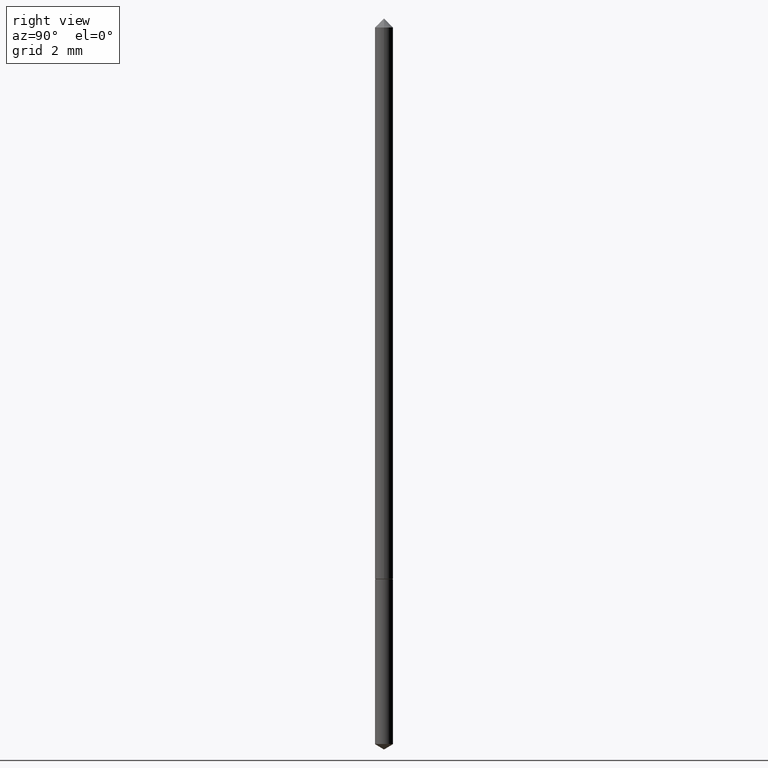
[diagram: clean part render]
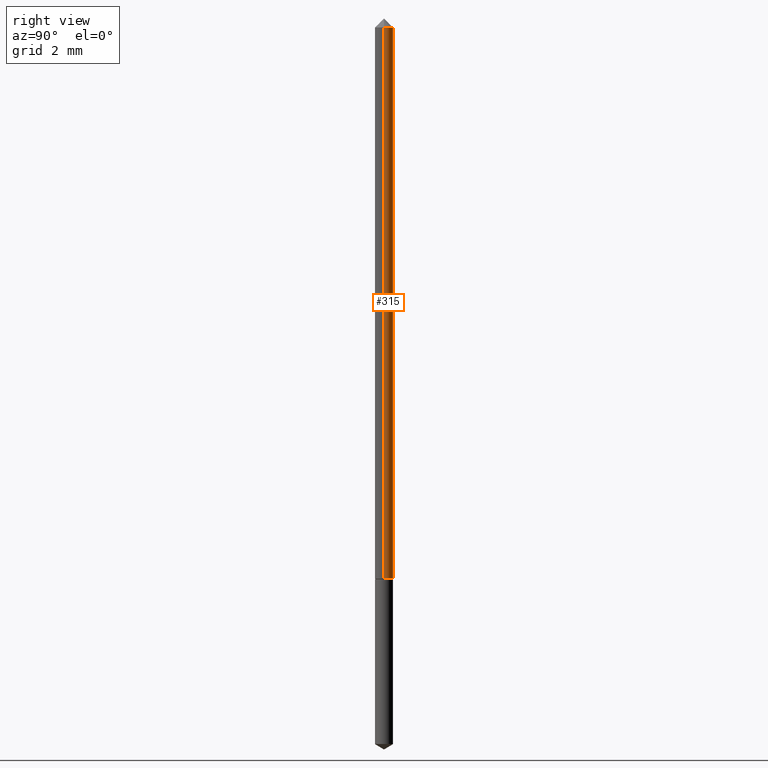
[diagram: same view with one face highlighted and labeled with its STEP entity id]
A machine part, right view. The second image highlights one B-rep face of the part: STEP entity #315.
In plain terms, the highlighted cylindrical surface (edge-blend (fillet) strip) has radius 0.2286 mm, axis along (-0, 0, 1).
Its self-contained STEP definition (entity closure, byte-faithful):
#10 = DIRECTION ( 'NONE',  ( -2.445468806185136877E-29, 3.491481338843145188E-15, 1.000000000000000000 ) ) ;
#12 = DIRECTION ( 'NONE',  ( -2.445468806185136597E-29, 3.491481338843145583E-15, 1.000000000000000000 ) ) ;
#13 = CARTESIAN_POINT ( 'NONE',  ( -0.009000000000000002789, -1.003135137965526004E-15, -0.03125000000000020123 ) ) ;
#17 = EDGE_LOOP ( 'NONE', ( #359, #281, #80, #115 ) ) ;
#20 = CYLINDRICAL_SURFACE ( 'NONE', #276, 0.009000000000000037484 ) ;
#35 = VERTEX_POINT ( 'NONE', #258 ) ;
#40 = VECTOR ( 'NONE', #10, 39.37007874015748143 ) ;
#43 = LINE ( 'NONE', #151, #40 ) ;
#45 = DIRECTION ( 'NONE',  ( 1.000000000000000000, -6.982962677686267499E-15, 4.876176775795935793E-29 ) ) ;
#48 = LINE ( 'NONE', #355, #260 ) ;
#69 = CARTESIAN_POINT ( 'NONE',  ( 7.642090019328600035E-31, -1.091087918388489897E-16, -0.03125000000000020123 ) ) ;
#80 = ORIENTED_EDGE ( 'NONE', *, *, #257, .F. ) ;
#115 = ORIENTED_EDGE ( 'NONE', *, *, #349, .F. ) ;
#122 = CARTESIAN_POINT ( 'NONE',  ( 0.000000000000000000, 0.000000000000000000, 0.000000000000000000 ) ) ;
#145 = DIRECTION ( 'NONE',  ( -2.445468806185136597E-29, 3.491481338843145583E-15, 1.000000000000000000 ) ) ;
#151 = CARTESIAN_POINT ( 'NONE',  ( -0.009000000000000037484, 6.394884621840928307E-17, -4.427041581229433862E-31 ) ) ;
#168 = VERTEX_POINT ( 'NONE', #204 ) ;
#172 = VERTEX_POINT ( 'NONE', #13 ) ;
#174 = DIRECTION ( 'NONE',  ( 1.000000000000000000, -6.982962677686277755E-15, 0.000000000000000000 ) ) ;
#189 = EDGE_CURVE ( 'NONE', #35, #172, #43, .T. ) ;
#195 = VERTEX_POINT ( 'NONE', #237 ) ;
#204 = CARTESIAN_POINT ( 'NONE',  ( 0.009000000000000072178, -2.087905840628201888E-15, -0.5800000000000000711 ) ) ;
#207 = FACE_OUTER_BOUND ( 'NONE', #17, .T. ) ;
#216 = DIRECTION ( 'NONE',  ( -2.445468806185136877E-29, 3.491481338843145188E-15, 1.000000000000000000 ) ) ;
#237 = CARTESIAN_POINT ( 'NONE',  ( 0.009000000000000002789, -1.719554559380254231E-16, -0.03125000000000020123 ) ) ;
#244 = DIRECTION ( 'NONE',  ( 1.000000000000000000, -6.982962677686268288E-15, 0.000000000000000000 ) ) ;
#250 = AXIS2_PLACEMENT_3D ( 'NONE', #320, #311, #174 ) ;
#257 = EDGE_CURVE ( 'NONE', #195, #172, #309, .T. ) ;
#258 = CARTESIAN_POINT ( 'NONE',  ( -0.009000000000000072178, -1.961110330310615530E-15, -0.5800000000000000711 ) ) ;
#260 = VECTOR ( 'NONE', #216, 39.37007874015748143 ) ;
#276 = AXIS2_PLACEMENT_3D ( 'NONE', #122, #145, #45 ) ;
#281 = ORIENTED_EDGE ( 'NONE', *, *, #189, .T. ) ;
#292 = AXIS2_PLACEMENT_3D ( 'NONE', #69, #12, #244 ) ;
#302 = CIRCLE ( 'NONE', #250, 0.009000000000000072178 ) ;
#309 = CIRCLE ( 'NONE', #292, 0.009000000000000002789 ) ;
#311 = DIRECTION ( 'NONE',  ( -2.445468806185136597E-29, 3.491481338843145583E-15, 1.000000000000000000 ) ) ;
#315 = ADVANCED_FACE ( 'NONE', ( #207 ), #20, .T. ) ;
#320 = CARTESIAN_POINT ( 'NONE',  ( 1.418371907587379260E-29, -2.025059176529024998E-15, -0.5800000000000000711 ) ) ;
#349 = EDGE_CURVE ( 'NONE', #168, #195, #48, .T. ) ;
#355 = CARTESIAN_POINT ( 'NONE',  ( 0.009000000000000037484, -6.284666409917666762E-17, 4.388559098216360676E-31 ) ) ;
#359 = ORIENTED_EDGE ( 'NONE', *, *, #361, .T. ) ;
#361 = EDGE_CURVE ( 'NONE', #168, #35, #302, .T. ) ;